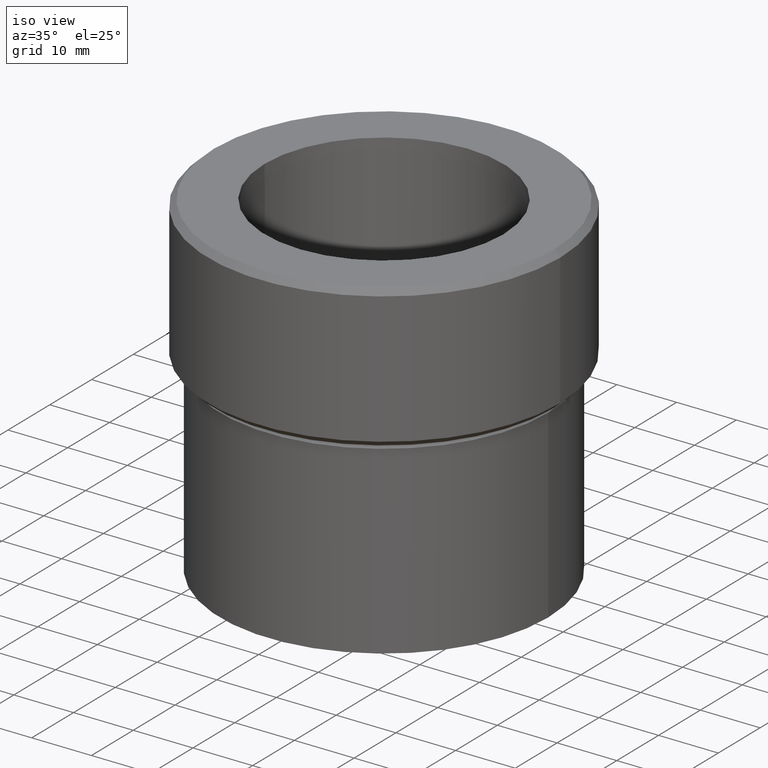
[diagram: clean part render]
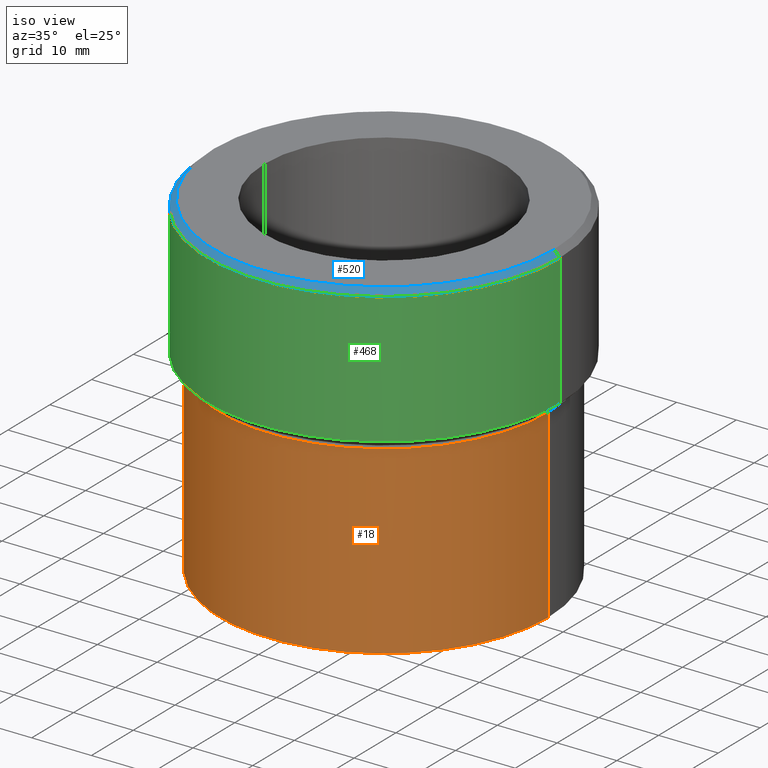
[diagram: same view with three faces highlighted in distinct colors, each labeled with its STEP entity id]
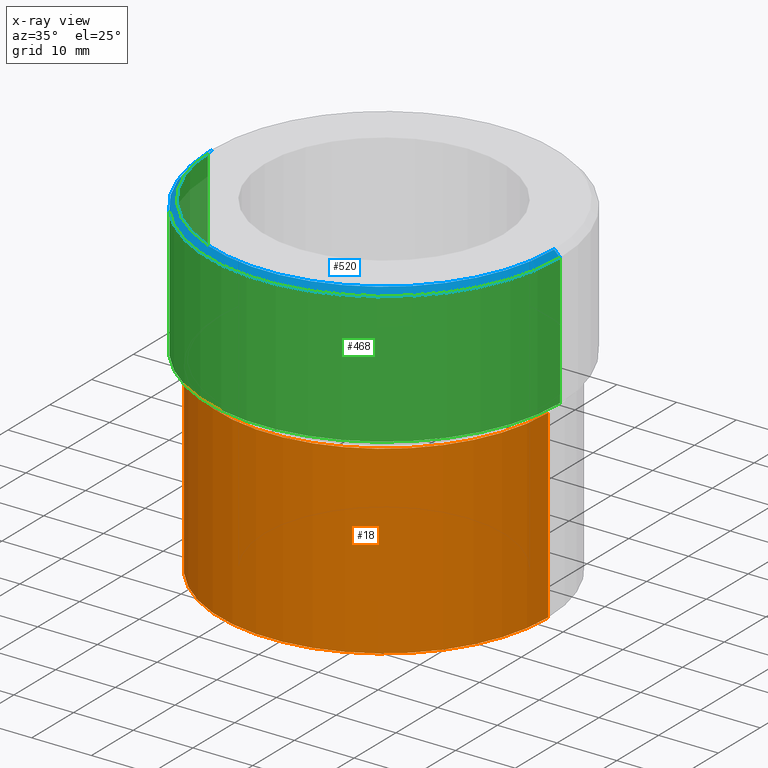
[diagram: x-ray of the same camera — body ghosted, the three highlighted faces saturated]
A machine part, iso view with three faces highlighted in distinct colors.
The next image is the same camera in x-ray (body ghosted, the three faces saturated) — at least one of them is partly hidden behind the body in this view.
Their STEP definitions:

[orange] entity #18 — the highlighted cylindrical surface (partial cylindrical patch) has radius 27.5 mm, axis along (-0, -0, 1).
#1 = LINE ( 'NONE', #43, #47 ) ;
#8 = DIRECTION ( 'NONE',  ( -0.000000000000000000, -0.000000000000000000, 1.000000000000000000 ) ) ;
#18 = ADVANCED_FACE ( 'NONE', ( #404 ), #476, .T. ) ;
#24 = ORIENTED_EDGE ( 'NONE', *, *, #222, .T. ) ;
#35 = EDGE_LOOP ( 'NONE', ( #342, #24, #64, #146 ) ) ;
#36 = VERTEX_POINT ( 'NONE', #113 ) ;
#39 = CARTESIAN_POINT ( 'NONE',  ( 0.000000000000000000, 0.000000000000000000, 0.000000000000000000 ) ) ;
#43 = CARTESIAN_POINT ( 'NONE',  ( 27.50000000000000355, 0.000000000000000000, 0.000000000000000000 ) ) ;
#47 = VECTOR ( 'NONE', #375, 1000.000000000000000 ) ;
#58 = AXIS2_PLACEMENT_3D ( 'NONE', #106, #403, #218 ) ;
#64 = ORIENTED_EDGE ( 'NONE', *, *, #142, .T. ) ;
#82 = CARTESIAN_POINT ( 'NONE',  ( 0.000000000000000000, 0.000000000000000000, -24.99999999999999645 ) ) ;
#87 = DIRECTION ( 'NONE',  ( 1.000000000000000000, 0.000000000000000000, 0.000000000000000000 ) ) ;
#106 = CARTESIAN_POINT ( 'NONE',  ( 0.000000000000000000, 0.000000000000000000, -56.00000000000000711 ) ) ;
#113 = CARTESIAN_POINT ( 'NONE',  ( -27.50000000000000355, 3.367778697655222096E-15, -24.99999999999999645 ) ) ;
#125 = CIRCLE ( 'NONE', #58, 27.50000000000000711 ) ;
#142 = EDGE_CURVE ( 'NONE', #513, #210, #1, .T. ) ;
#145 = CARTESIAN_POINT ( 'NONE',  ( -27.50000000000000355, 3.367778697655222096E-15, 0.000000000000000000 ) ) ;
#146 = ORIENTED_EDGE ( 'NONE', *, *, #454, .F. ) ;
#156 = CARTESIAN_POINT ( 'NONE',  ( -27.50000000000001066, 3.367778697655222885E-15, -56.00000000000000711 ) ) ;
#187 = AXIS2_PLACEMENT_3D ( 'NONE', #39, #446, #353 ) ;
#209 = AXIS2_PLACEMENT_3D ( 'NONE', #82, #463, #87 ) ;
#210 = VERTEX_POINT ( 'NONE', #521 ) ;
#218 = DIRECTION ( 'NONE',  ( 1.000000000000000000, 0.000000000000000000, 0.000000000000000000 ) ) ;
#222 = EDGE_CURVE ( 'NONE', #426, #513, #125, .T. ) ;
#265 = VECTOR ( 'NONE', #8, 1000.000000000000000 ) ;
#314 = CIRCLE ( 'NONE', #209, 27.50000000000000355 ) ;
#342 = ORIENTED_EDGE ( 'NONE', *, *, #488, .F. ) ;
#353 = DIRECTION ( 'NONE',  ( 1.000000000000000000, 0.000000000000000000, 0.000000000000000000 ) ) ;
#375 = DIRECTION ( 'NONE',  ( -0.000000000000000000, -0.000000000000000000, 1.000000000000000000 ) ) ;
#383 = CARTESIAN_POINT ( 'NONE',  ( 27.50000000000000711, 0.000000000000000000, -56.00000000000000711 ) ) ;
#403 = DIRECTION ( 'NONE',  ( -0.000000000000000000, -0.000000000000000000, 1.000000000000000000 ) ) ;
#404 = FACE_OUTER_BOUND ( 'NONE', #35, .T. ) ;
#426 = VERTEX_POINT ( 'NONE', #156 ) ;
#446 = DIRECTION ( 'NONE',  ( -0.000000000000000000, -0.000000000000000000, 1.000000000000000000 ) ) ;
#454 = EDGE_CURVE ( 'NONE', #36, #210, #314, .T. ) ;
#463 = DIRECTION ( 'NONE',  ( -0.000000000000000000, -0.000000000000000000, 1.000000000000000000 ) ) ;
#476 = CYLINDRICAL_SURFACE ( 'NONE', #187, 27.50000000000000355 ) ;
#488 = EDGE_CURVE ( 'NONE', #426, #36, #526, .T. ) ;
#513 = VERTEX_POINT ( 'NONE', #383 ) ;
#521 = CARTESIAN_POINT ( 'NONE',  ( 27.50000000000000355, 0.000000000000000000, -24.99999999999999645 ) ) ;
#526 = LINE ( 'NONE', #145, #265 ) ;

[blue] entity #520 — the highlighted conical surface has half-angle 45 deg.
#7 = CARTESIAN_POINT ( 'NONE',  ( -28.49999999999998224, 0.000000000000000000, 0.000000000000000000 ) ) ;
#19 = DIRECTION ( 'NONE',  ( 0.000000000000000000, 0.000000000000000000, -1.000000000000000000 ) ) ;
#45 = EDGE_CURVE ( 'NONE', #189, #121, #409, .T. ) ;
#55 = ORIENTED_EDGE ( 'NONE', *, *, #119, .T. ) ;
#68 = AXIS2_PLACEMENT_3D ( 'NONE', #324, #246, #423 ) ;
#74 = VERTEX_POINT ( 'NONE', #7 ) ;
#88 = VECTOR ( 'NONE', #122, 1000.000000000000000 ) ;
#97 = EDGE_LOOP ( 'NONE', ( #502, #199, #55, #297 ) ) ;
#116 = VECTOR ( 'NONE', #153, 1000.000000000000000 ) ;
#119 = EDGE_CURVE ( 'NONE', #74, #335, #494, .T. ) ;
#120 = CARTESIAN_POINT ( 'NONE',  ( -28.49999999999998224, 0.000000000000000000, 0.000000000000000000 ) ) ;
#121 = VERTEX_POINT ( 'NONE', #369 ) ;
#122 = DIRECTION ( 'NONE',  ( -0.7071067811865512365, 0.000000000000000000, -0.7071067811865439090 ) ) ;
#129 = CARTESIAN_POINT ( 'NONE',  ( 0.000000000000000000, 0.000000000000000000, 0.000000000000000000 ) ) ;
#153 = DIRECTION ( 'NONE',  ( 0.7071067811865512365, 8.659560562354979697E-17, -0.7071067811865439090 ) ) ;
#158 = DIRECTION ( 'NONE',  ( -1.000000000000000000, 0.000000000000000000, 0.000000000000000000 ) ) ;
#189 = VERTEX_POINT ( 'NONE', #427 ) ;
#199 = ORIENTED_EDGE ( 'NONE', *, *, #511, .F. ) ;
#211 = EDGE_CURVE ( 'NONE', #121, #335, #442, .T. ) ;
#246 = DIRECTION ( 'NONE',  ( -0.000000000000000000, -0.000000000000000000, 1.000000000000000000 ) ) ;
#260 = CARTESIAN_POINT ( 'NONE',  ( 0.000000000000000000, 0.000000000000000000, -1.000000000000004441 ) ) ;
#297 = ORIENTED_EDGE ( 'NONE', *, *, #211, .F. ) ;
#324 = CARTESIAN_POINT ( 'NONE',  ( 0.000000000000000000, 0.000000000000000000, 0.000000000000000000 ) ) ;
#335 = VERTEX_POINT ( 'NONE', #462 ) ;
#338 = CONICAL_SURFACE ( 'NONE', #374, 28.49999999999998224, 0.7853981633974533860 ) ;
#366 = CIRCLE ( 'NONE', #68, 28.49999999999998224 ) ;
#369 = CARTESIAN_POINT ( 'NONE',  ( 29.50000000000000000, 0.000000000000000000, -1.000000000000004441 ) ) ;
#374 = AXIS2_PLACEMENT_3D ( 'NONE', #129, #19, #158 ) ;
#386 = FACE_OUTER_BOUND ( 'NONE', #97, .T. ) ;
#409 = LINE ( 'NONE', #531, #116 ) ;
#423 = DIRECTION ( 'NONE',  ( 1.000000000000000000, 0.000000000000000000, 0.000000000000000000 ) ) ;
#427 = CARTESIAN_POINT ( 'NONE',  ( 28.49999999999998224, 3.551475717527322452E-15, 0.000000000000000000 ) ) ;
#438 = DIRECTION ( 'NONE',  ( 1.000000000000000000, 0.000000000000000000, 0.000000000000000000 ) ) ;
#442 = CIRCLE ( 'NONE', #500, 29.50000000000000000 ) ;
#462 = CARTESIAN_POINT ( 'NONE',  ( -29.50000000000000000, 3.612708057484691604E-15, -1.000000000000004441 ) ) ;
#494 = LINE ( 'NONE', #120, #88 ) ;
#500 = AXIS2_PLACEMENT_3D ( 'NONE', #260, #524, #438 ) ;
#502 = ORIENTED_EDGE ( 'NONE', *, *, #45, .F. ) ;
#511 = EDGE_CURVE ( 'NONE', #74, #189, #366, .T. ) ;
#520 = ADVANCED_FACE ( 'NONE', ( #386 ), #338, .T. ) ;
#524 = DIRECTION ( 'NONE',  ( 0.000000000000000000, 0.000000000000000000, -1.000000000000000000 ) ) ;
#531 = CARTESIAN_POINT ( 'NONE',  ( 28.49999999999998224, 3.490243377569954483E-15, 0.000000000000000000 ) ) ;

[green] entity #468 — the highlighted cylindrical surface (partial cylindrical patch) has radius 29.5 mm, axis along (-0, -0, 1).
#34 = EDGE_LOOP ( 'NONE', ( #296, #93, #505, #417 ) ) ;
#75 = DIRECTION ( 'NONE',  ( -0.000000000000000000, -0.000000000000000000, 1.000000000000000000 ) ) ;
#80 = EDGE_CURVE ( 'NONE', #124, #335, #329, .T. ) ;
#93 = ORIENTED_EDGE ( 'NONE', *, *, #433, .T. ) ;
#95 = CYLINDRICAL_SURFACE ( 'NONE', #105, 29.50000000000000000 ) ;
#103 = CARTESIAN_POINT ( 'NONE',  ( 29.50000000000000000, 0.000000000000000000, 0.000000000000000000 ) ) ;
#105 = AXIS2_PLACEMENT_3D ( 'NONE', #350, #215, #477 ) ;
#112 = CARTESIAN_POINT ( 'NONE',  ( 0.000000000000000000, 0.000000000000000000, -22.99999999999999289 ) ) ;
#121 = VERTEX_POINT ( 'NONE', #369 ) ;
#124 = VERTEX_POINT ( 'NONE', #283 ) ;
#208 = CIRCLE ( 'NONE', #241, 29.50000000000000000 ) ;
#211 = EDGE_CURVE ( 'NONE', #121, #335, #442, .T. ) ;
#215 = DIRECTION ( 'NONE',  ( -0.000000000000000000, -0.000000000000000000, 1.000000000000000000 ) ) ;
#225 = DIRECTION ( 'NONE',  ( -1.000000000000000000, 0.000000000000000000, 0.000000000000000000 ) ) ;
#241 = AXIS2_PLACEMENT_3D ( 'NONE', #112, #75, #225 ) ;
#243 = FACE_OUTER_BOUND ( 'NONE', #34, .T. ) ;
#259 = DIRECTION ( 'NONE',  ( -0.000000000000000000, -0.000000000000000000, 1.000000000000000000 ) ) ;
#260 = CARTESIAN_POINT ( 'NONE',  ( 0.000000000000000000, 0.000000000000000000, -1.000000000000004441 ) ) ;
#283 = CARTESIAN_POINT ( 'NONE',  ( -29.50000000000000000, 3.612708057484691604E-15, -22.99999999999999289 ) ) ;
#296 = ORIENTED_EDGE ( 'NONE', *, *, #80, .F. ) ;
#329 = LINE ( 'NONE', #422, #528 ) ;
#335 = VERTEX_POINT ( 'NONE', #462 ) ;
#350 = CARTESIAN_POINT ( 'NONE',  ( 0.000000000000000000, 0.000000000000000000, 0.000000000000000000 ) ) ;
#361 = VECTOR ( 'NONE', #259, 1000.000000000000000 ) ;
#369 = CARTESIAN_POINT ( 'NONE',  ( 29.50000000000000000, 0.000000000000000000, -1.000000000000004441 ) ) ;
#417 = ORIENTED_EDGE ( 'NONE', *, *, #211, .T. ) ;
#422 = CARTESIAN_POINT ( 'NONE',  ( -29.50000000000000000, 3.612708057484691604E-15, 0.000000000000000000 ) ) ;
#433 = EDGE_CURVE ( 'NONE', #124, #485, #208, .T. ) ;
#438 = DIRECTION ( 'NONE',  ( 1.000000000000000000, 0.000000000000000000, 0.000000000000000000 ) ) ;
#441 = CARTESIAN_POINT ( 'NONE',  ( 29.50000000000000000, 0.000000000000000000, -22.99999999999999289 ) ) ;
#442 = CIRCLE ( 'NONE', #500, 29.50000000000000000 ) ;
#455 = DIRECTION ( 'NONE',  ( -0.000000000000000000, -0.000000000000000000, 1.000000000000000000 ) ) ;
#462 = CARTESIAN_POINT ( 'NONE',  ( -29.50000000000000000, 3.612708057484691604E-15, -1.000000000000004441 ) ) ;
#468 = ADVANCED_FACE ( 'NONE', ( #243 ), #95, .T. ) ;
#477 = DIRECTION ( 'NONE',  ( 1.000000000000000000, 0.000000000000000000, 0.000000000000000000 ) ) ;
#479 = EDGE_CURVE ( 'NONE', #485, #121, #518, .T. ) ;
#485 = VERTEX_POINT ( 'NONE', #441 ) ;
#500 = AXIS2_PLACEMENT_3D ( 'NONE', #260, #524, #438 ) ;
#505 = ORIENTED_EDGE ( 'NONE', *, *, #479, .T. ) ;
#518 = LINE ( 'NONE', #103, #361 ) ;
#524 = DIRECTION ( 'NONE',  ( 0.000000000000000000, 0.000000000000000000, -1.000000000000000000 ) ) ;
#528 = VECTOR ( 'NONE', #455, 1000.000000000000000 ) ;